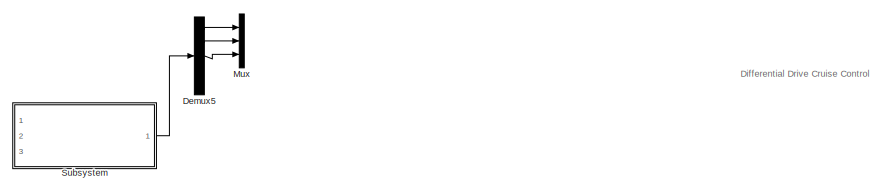
[diagram: root canvas - part 1/3, top center region]
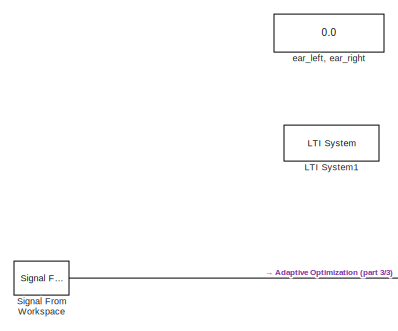
[diagram: root canvas - part 2/3, middle left region]
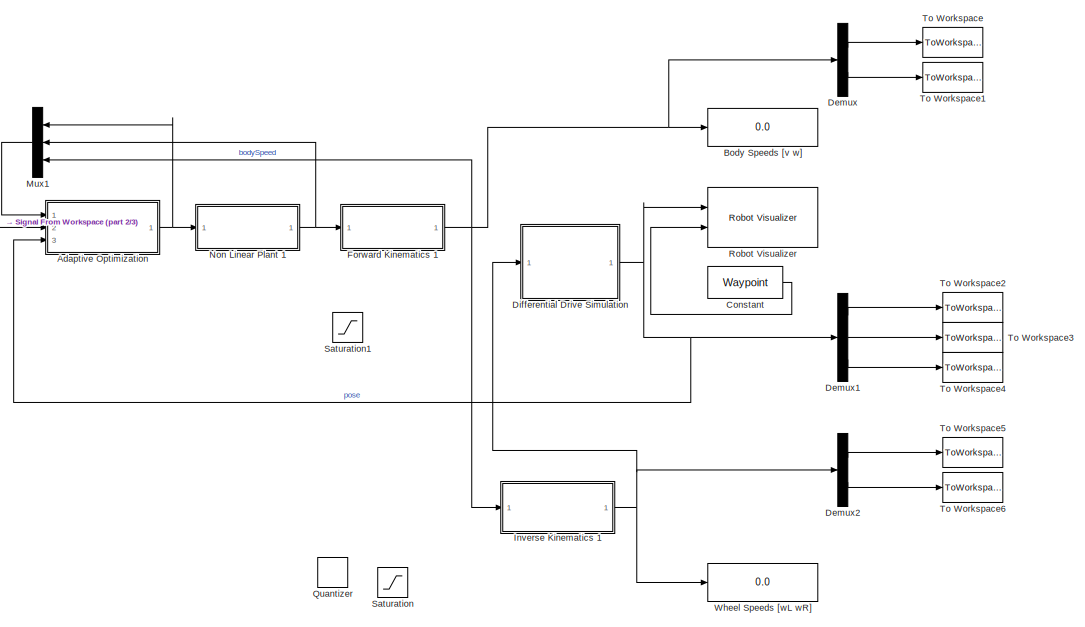
[diagram: root canvas - part 3/3, central region]
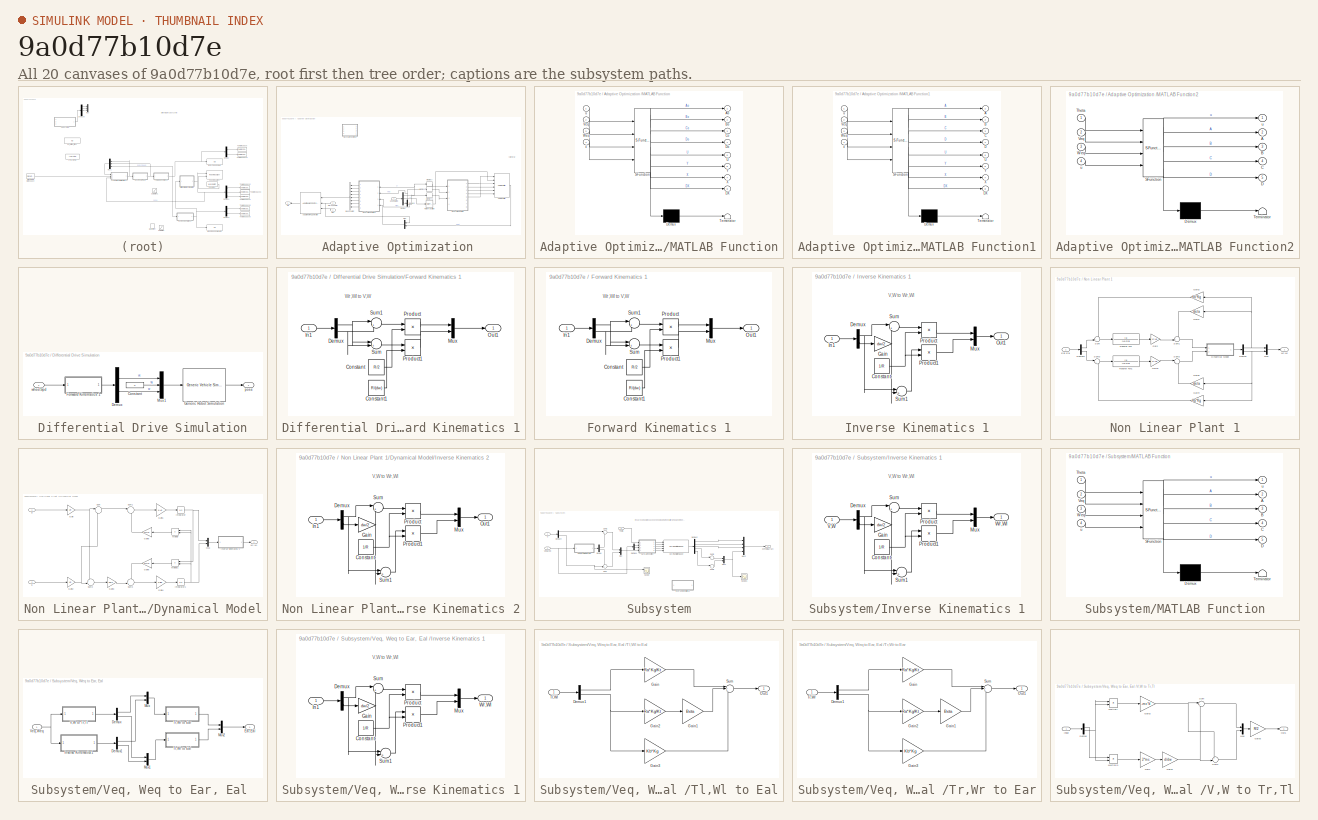
[diagram: thumbnail index - all 20 canvases of the model, root first then tree order]
MODEL slx_9a0d77b10d7e
KIND model
CONFIG AbsTol = auto
CONFIG EnableMultiTasking = off
CONFIG FixedStep = auto
CONFIG MaxStep = auto
CONFIG MinStep = auto
CONFIG RelTol = 1e-3
CONFIG SampleTimeConstraint = Unconstrained
CONFIG Solver = VariableStepAuto
CONFIG SolverName = VariableStepAuto
CONFIG StartTime = 0.0
CONFIG StopTime = inf
BLOCK [SubSystem] Adaptive Optimization 
  Ports = [3, 1]
  RequestExecContextInheritance = off
BLOCK [Reference] Adaptive Optimization /Adaptive MPC Controller  REF=mpclib/Adaptive MPC Controller  (lib defined in mdl_ae329e0e0455)
  Ports = [3, 1]
  SCDEnableBlockLinearizationSpecification = on
  SourceBlock = mpclib/Adaptive MPC Controller
  SourceProductBaseCode = MP
  SourceProductName = Model Predictive Control Toolbox
  SourceType = Adaptive MPC
BLOCK [BusCreator] Adaptive Optimization /Bus Creator
  DisplayOption = bar
  InheritFromInputs = on
  Inputs = 8
  Ports = [8, 1]
BLOCK [Demux] Adaptive Optimization /Demux
  DisplayOption = bar
  Outputs = 3
  Ports = [1, 3]
BLOCK [Demux] Adaptive Optimization /Demux1
  DisplayOption = bar
  Outputs = 2
  Ports = [1, 2]
BLOCK [Reference] Adaptive Optimization /Kalman Filter  REF=ctrlSharedLib/Kalman Filter
  Ports = [6, 1]
  SourceBlock = ctrlSharedLib/Kalman Filter
  SourceProductBaseCode = CT
  SourceProductName = Control System Toolbox
  SourceType = ctrlKalmanFilter
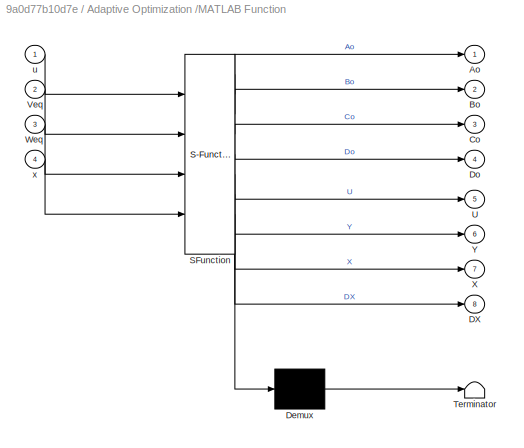
BLOCK [SubSystem] Adaptive Optimization /MATLAB Function
  ErrorFcn = Stateflow.Translate.translate
  PermitHierarchicalResolution = ExplicitOnly
  Ports = [4, 8]
  RequestExecContextInheritance = off
  SFBlockType = MATLAB Function
  SystemSampleTime = sampleTime
  TreatAsAtomicUnit = on
BLOCK [Demux] Adaptive Optimization /MATLAB Function/ Demux 
  Outputs = 1
  Ports = [1, 1]
BLOCK [S-Function] Adaptive Optimization /MATLAB Function/ SFunction 
  EnableBusSupport = on
  FunctionName = sf_sfun
  Parameters = I,Iw,L,R,d,dw,md,sampleTime
  PortCounts = [4 9]
  Ports = [4, 9]
  SFcnIsStateOwnerBlock = off
  SFunctionDeploymentMode = off
  Tag = Stateflow S-Function Position_MPC_Adaptive 3
BLOCK [Terminator] Adaptive Optimization /MATLAB Function/ Terminator 
BLOCK [Outport] Adaptive Optimization /MATLAB Function/Ao
  IconDisplay = Port number
BLOCK [Outport] Adaptive Optimization /MATLAB Function/Bo
  IconDisplay = Port number
  Port = 2
BLOCK [Outport] Adaptive Optimization /MATLAB Function/Co
  IconDisplay = Port number
  Port = 3
BLOCK [Outport] Adaptive Optimization /MATLAB Function/DX
  IconDisplay = Port number
  Port = 8
BLOCK [Outport] Adaptive Optimization /MATLAB Function/Do
  IconDisplay = Port number
  Port = 4
BLOCK [Outport] Adaptive Optimization /MATLAB Function/U
  IconDisplay = Port number
  Port = 5
BLOCK [Inport] Adaptive Optimization /MATLAB Function/Veq
  IconDisplay = Port number
  Port = 2
BLOCK [Inport] Adaptive Optimization /MATLAB Function/Weq
  IconDisplay = Port number
  Port = 3
BLOCK [Outport] Adaptive Optimization /MATLAB Function/X
  IconDisplay = Port number
  Port = 7
BLOCK [Outport] Adaptive Optimization /MATLAB Function/Y
  IconDisplay = Port number
  Port = 6
BLOCK [Inport] Adaptive Optimization /MATLAB Function/u
  IconDisplay = Port number
BLOCK [Inport] Adaptive Optimization /MATLAB Function/x
  IconDisplay = Port number
  Port = 4
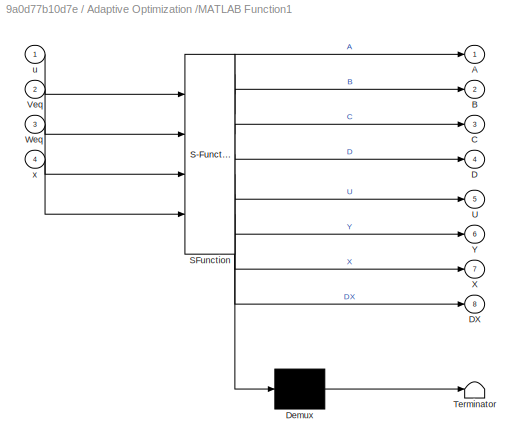
BLOCK [SubSystem] Adaptive Optimization /MATLAB Function1
  ErrorFcn = Stateflow.Translate.translate
  PermitHierarchicalResolution = ExplicitOnly
  Ports = [4, 8]
  RequestExecContextInheritance = off
  SFBlockType = MATLAB Function
  SystemSampleTime = sampleTime
  TreatAsAtomicUnit = on
BLOCK [Demux] Adaptive Optimization /MATLAB Function1/ Demux 
  Outputs = 1
  Ports = [1, 1]
BLOCK [S-Function] Adaptive Optimization /MATLAB Function1/ SFunction 
  EnableBusSupport = on
  FunctionName = sf_sfun
  Parameters = I,Iw,L,R,d,dw,md,sampleTime
  PortCounts = [4 9]
  Ports = [4, 9]
  SFcnIsStateOwnerBlock = off
  SFunctionDeploymentMode = off
  Tag = Stateflow S-Function Position_MPC_Adaptive 4
BLOCK [Terminator] Adaptive Optimization /MATLAB Function1/ Terminator 
BLOCK [Outport] Adaptive Optimization /MATLAB Function1/A
  IconDisplay = Port number
BLOCK [Outport] Adaptive Optimization /MATLAB Function1/B
  IconDisplay = Port number
  Port = 2
BLOCK [Outport] Adaptive Optimization /MATLAB Function1/C
  IconDisplay = Port number
  Port = 3
BLOCK [Outport] Adaptive Optimization /MATLAB Function1/D
  IconDisplay = Port number
  Port = 4
BLOCK [Outport] Adaptive Optimization /MATLAB Function1/DX
  IconDisplay = Port number
  Port = 8
BLOCK [Outport] Adaptive Optimization /MATLAB Function1/U
  IconDisplay = Port number
  Port = 5
BLOCK [Inport] Adaptive Optimization /MATLAB Function1/Veq
  IconDisplay = Port number
  Port = 2
BLOCK [Inport] Adaptive Optimization /MATLAB Function1/Weq
  IconDisplay = Port number
  Port = 3
BLOCK [Outport] Adaptive Optimization /MATLAB Function1/X
  IconDisplay = Port number
  Port = 7
BLOCK [Outport] Adaptive Optimization /MATLAB Function1/Y
  IconDisplay = Port number
  Port = 6
BLOCK [Inport] Adaptive Optimization /MATLAB Function1/u
  IconDisplay = Port number
BLOCK [Inport] Adaptive Optimization /MATLAB Function1/x
  IconDisplay = Port number
  Port = 4
BLOCK [SubSystem] Adaptive Optimization /MATLAB Function2
  ErrorFcn = Stateflow.Translate.translate
  PermitHierarchicalResolution = ExplicitOnly
  Ports = [4, 5]
  RequestExecContextInheritance = off
  SFBlockType = MATLAB Function
  SystemSampleTime = sampleTime*0.1
  TreatAsAtomicUnit = on
BLOCK [Demux] Adaptive Optimization /MATLAB Function2/ Demux 
  Outputs = 1
  Ports = [1, 1]
BLOCK [S-Function] Adaptive Optimization /MATLAB Function2/ SFunction 
  EnableBusSupport = on
  FunctionName = sf_sfun
  Parameters = I,Iw,R,sampleTime
  PortCounts = [4 6]
  Ports = [4, 6]
  SFcnIsStateOwnerBlock = off
  SFunctionDeploymentMode = off
  Tag = Stateflow S-Function Position_MPC_Adaptive 1
BLOCK [Terminator] Adaptive Optimization /MATLAB Function2/ Terminator 
BLOCK [Outport] Adaptive Optimization /MATLAB Function2/A
  IconDisplay = Port number
  Port = 2
BLOCK [Outport] Adaptive Optimization /MATLAB Function2/B
  IconDisplay = Port number
  Port = 3
BLOCK [Outport] Adaptive Optimization /MATLAB Function2/C
  IconDisplay = Port number
  Port = 4
BLOCK [Outport] Adaptive Optimization /MATLAB Function2/D
  IconDisplay = Port number
  Port = 5
BLOCK [Inport] Adaptive Optimization /MATLAB Function2/Theta
  IconDisplay = Port number
BLOCK [Inport] Adaptive Optimization /MATLAB Function2/Veq
  IconDisplay = Port number
  Port = 2
BLOCK [Inport] Adaptive Optimization /MATLAB Function2/Weq
  IconDisplay = Port number
  Port = 3
BLOCK [Outport] Adaptive Optimization /MATLAB Function2/u
  IconDisplay = Port number
BLOCK [Inport] Adaptive Optimization /MATLAB Function2/u 
  IconDisplay = Port number
  Port = 4
BLOCK [Memory] Adaptive Optimization /Memory
BLOCK [Memory] Adaptive Optimization /Memory1
BLOCK [Memory] Adaptive Optimization /Memory2
BLOCK [Inport] Adaptive Optimization /Mo(X,Y,Theta)
  IconDisplay = Port number
  Port = 3
BLOCK [Mux] Adaptive Optimization /Mux
  DisplayOption = bar
  Inputs = 2
  Ports = [2, 1]
BLOCK [Outport] Adaptive Optimization /Mv
  IconDisplay = Port number
BLOCK [RateTransition] Adaptive Optimization /Rate Transition
  OutPortSampleTime = sampleTime
BLOCK [Inport] Adaptive Optimization /Ref
  IconDisplay = Port number
  Port = 2
BLOCK [Inport] Adaptive Optimization /U,Y,Veq,Weq
  IconDisplay = Port number
BLOCK [Display] Body Speeds [v w]
  Decimation = 1
  Ports = [1]
BLOCK [Constant] Constant
  SampleTime = sampleTime
  Value = Waypoint
BLOCK [Demux] Demux
  DisplayOption = bar
  Outputs = 2
  Ports = [1, 2]
BLOCK [Demux] Demux1
  DisplayOption = bar
  Outputs = 3
  Ports = [1, 3]
BLOCK [Demux] Demux2
  DisplayOption = bar
  Outputs = 2
  Ports = [1, 2]
BLOCK [Demux] Demux5
  DisplayOption = bar
  Outputs = 5
  Ports = [1, 5]
BLOCK [SubSystem] Differential Drive Simulation
  AncestorBlock = mobileRoboticsLib/Kinematic Models/Differential Drive/Differential Drive Simulation
  OverrideUsingVariant = mode==2
  Ports = [1, 1]
  RequestExecContextInheritance = off
BLOCK [Constant] Differential Drive Simulation/Constant
  Value = 0
BLOCK [Demux] Differential Drive Simulation/Demux
  DisplayOption = bar
  Outputs = 2
  Ports = [1, 2]
BLOCK [SubSystem] Differential Drive Simulation/Forward Kinematics 1
  Ports = [1, 1]
  RequestExecContextInheritance = off
BLOCK [Constant] Differential Drive Simulation/Forward Kinematics 1/Constant
  Value = R/2
BLOCK [Constant] Differential Drive Simulation/Forward Kinematics 1/Constant1
  Value = R/(dw)
BLOCK [Demux] Differential Drive Simulation/Forward Kinematics 1/Demux
  DisplayOption = bar
  Outputs = 2
  Ports = [1, 2]
BLOCK [Inport] Differential Drive Simulation/Forward Kinematics 1/In1
  IconDisplay = Port number
BLOCK [Mux] Differential Drive Simulation/Forward Kinematics 1/Mux
  DisplayOption = bar
  Inputs = 2
  Ports = [2, 1]
BLOCK [Outport] Differential Drive Simulation/Forward Kinematics 1/Out1
  IconDisplay = Port number
BLOCK [Product] Differential Drive Simulation/Forward Kinematics 1/Product
  InputSameDT = off
  OutDataTypeStr = Inherit: Inherit via internal rule
  Ports = [2, 1]
  RndMeth = Floor
  SaturateOnIntegerOverflow = off
BLOCK [Product] Differential Drive Simulation/Forward Kinematics 1/Product1
  InputSameDT = off
  OutDataTypeStr = Inherit: Inherit via internal rule
  Ports = [2, 1]
  RndMeth = Floor
  SaturateOnIntegerOverflow = off
BLOCK [Sum] Differential Drive Simulation/Forward Kinematics 1/Sum
  IconShape = round
  InputSameDT = off
  Inputs = |+-
  OutDataTypeStr = Inherit: Inherit via internal rule
  Ports = [2, 1]
  SaturateOnIntegerOverflow = off
BLOCK [Sum] Differential Drive Simulation/Forward Kinematics 1/Sum1
  IconShape = round
  InputSameDT = off
  Inputs = |++
  OutDataTypeStr = Inherit: Inherit via internal rule
  Ports = [2, 1]
  SaturateOnIntegerOverflow = off
BLOCK [Reference] Differential Drive Simulation/Generic Robot Simulation  REF=mobileRoboticsLib/Utilities/Generic Vehicle Simulation
  Ports = [1, 1]
  SourceBlock = mobileRoboticsLib/Utilities/Generic Vehicle Simulation
  SourceProductName = Mobile Robotics Simulation Toolbox
  SourceType = Generic Vehicle Simulation
BLOCK [Mux] Differential Drive Simulation/Mux1
  DisplayOption = bar
  Inputs = 3
  Ports = [3, 1]
BLOCK [Outport] Differential Drive Simulation/pose
  IconDisplay = Port number
BLOCK [Inport] Differential Drive Simulation/wheelSpd
  IconDisplay = Port number
BLOCK [SubSystem] Forward Kinematics 1
  Ports = [1, 1]
  RequestExecContextInheritance = off
BLOCK [Constant] Forward Kinematics 1/Constant
  Value = R/2
BLOCK [Constant] Forward Kinematics 1/Constant1
  Value = R/(dw)
BLOCK [Demux] Forward Kinematics 1/Demux
  DisplayOption = bar
  Outputs = 2
  Ports = [1, 2]
BLOCK [Inport] Forward Kinematics 1/In1
  IconDisplay = Port number
BLOCK [Mux] Forward Kinematics 1/Mux
  DisplayOption = bar
  Inputs = 2
  Ports = [2, 1]
BLOCK [Outport] Forward Kinematics 1/Out1
  IconDisplay = Port number
BLOCK [Product] Forward Kinematics 1/Product
  InputSameDT = off
  OutDataTypeStr = Inherit: Inherit via internal rule
  Ports = [2, 1]
  RndMeth = Floor
  SaturateOnIntegerOverflow = off
BLOCK [Product] Forward Kinematics 1/Product1
  InputSameDT = off
  OutDataTypeStr = Inherit: Inherit via internal rule
  Ports = [2, 1]
  RndMeth = Floor
  SaturateOnIntegerOverflow = off
BLOCK [Sum] Forward Kinematics 1/Sum
  IconShape = round
  InputSameDT = off
  Inputs = |+-
  OutDataTypeStr = Inherit: Inherit via internal rule
  Ports = [2, 1]
  SaturateOnIntegerOverflow = off
BLOCK [Sum] Forward Kinematics 1/Sum1
  IconShape = round
  InputSameDT = off
  Inputs = |++
  OutDataTypeStr = Inherit: Inherit via internal rule
  Ports = [2, 1]
  SaturateOnIntegerOverflow = off
BLOCK [SubSystem] Inverse Kinematics 1
  Ports = [1, 1]
  RequestExecContextInheritance = off
BLOCK [Constant] Inverse Kinematics 1/Constant
  Value = 1/R
BLOCK [Demux] Inverse Kinematics 1/Demux
  DisplayOption = bar
  Outputs = 2
  Ports = [1, 2]
BLOCK [Gain] Inverse Kinematics 1/Gain
  Gain = dw/2
  OutDataTypeStr = Inherit: Inherit via internal rule
  ParamDataTypeStr = Inherit: Inherit via internal rule
  SaturateOnIntegerOverflow = off
BLOCK [Inport] Inverse Kinematics 1/In1
  IconDisplay = Port number
BLOCK [Mux] Inverse Kinematics 1/Mux
  DisplayOption = bar
  Inputs = 2
  Ports = [2, 1]
BLOCK [Outport] Inverse Kinematics 1/Out1
  IconDisplay = Port number
BLOCK [Product] Inverse Kinematics 1/Product
  InputSameDT = off
  OutDataTypeStr = Inherit: Inherit via internal rule
  Ports = [2, 1]
  RndMeth = Floor
  SaturateOnIntegerOverflow = off
BLOCK [Product] Inverse Kinematics 1/Product1
  InputSameDT = off
  OutDataTypeStr = Inherit: Inherit via internal rule
  Ports = [2, 1]
  RndMeth = Floor
  SaturateOnIntegerOverflow = off
BLOCK [Sum] Inverse Kinematics 1/Sum
  IconShape = round
  InputSameDT = off
  Inputs = |++
  OutDataTypeStr = Inherit: Inherit via internal rule
  Ports = [2, 1]
  SaturateOnIntegerOverflow = off
BLOCK [Sum] Inverse Kinematics 1/Sum1
  IconShape = round
  InputSameDT = off
  Inputs = |+-
  OutDataTypeStr = Inherit: Inherit via internal rule
  Ports = [2, 1]
  SaturateOnIntegerOverflow = off
BLOCK [Reference] LTI System1  REF=cstblocks/LTI System
  Ports = [1, 1]
  SourceBlock = cstblocks/LTI System
  SourceProductBaseCode = CT
  SourceProductName = Control System Toolbox
  SourceType = LTI Block
BLOCK [Mux] Mux
  DisplayOption = bar
  Inputs = 3
  Ports = [3, 1]
BLOCK [Mux] Mux1
  DisplayOption = bar
  Inputs = 3
  Ports = [3, 1]
BLOCK [SubSystem] Non Linear Plant 1
  Ports = [1, 1]
  RequestExecContextInheritance = off
BLOCK [Demux] Non Linear Plant 1/Demux
  DisplayOption = bar
  Outputs = 2
  Ports = [1, 2]
BLOCK [Demux] Non Linear Plant 1/Demux1
  DisplayOption = bar
  Outputs = 2
  Ports = [1, 2]
BLOCK [SubSystem] Non Linear Plant 1/Dynamical Model
  Ports = [2, 1]
  RequestExecContextInheritance = off
BLOCK [Gain] Non Linear Plant 1/Dynamical Model/Gain
  Gain = 1/R
  OutDataTypeStr = Inherit: Inherit via internal rule
  ParamDataTypeStr = Inherit: Inherit via internal rule
  SaturateOnIntegerOverflow = off
BLOCK [Gain] Non Linear Plant 1/Dynamical Model/Gain1
  Gain = 1/Ad
  OutDataTypeStr = Inherit: Inherit via internal rule
  ParamDataTypeStr = Inherit: Inherit via internal rule
  SaturateOnIntegerOverflow = off
BLOCK [Gain] Non Linear Plant 1/Dynamical Model/Gain2
  Gain = 1/R
  OutDataTypeStr = Inherit: Inherit via internal rule
  ParamDataTypeStr = Inherit: Inherit via internal rule
  SaturateOnIntegerOverflow = off
BLOCK [Gain] Non Linear Plant 1/Dynamical Model/Gain3
  Gain = dw/2
  OutDataTypeStr = Inherit: Inherit via internal rule
  ParamDataTypeStr = Inherit: Inherit via internal rule
  SaturateOnIntegerOverflow = off
BLOCK [Gain] Non Linear Plant 1/Dynamical Model/Gain4
  Gain = 1/Bd
  OutDataTypeStr = Inherit: Inherit via internal rule
  ParamDataTypeStr = Inherit: Inherit via internal rule
  SaturateOnIntegerOverflow = off
BLOCK [Gain] Non Linear Plant 1/Dynamical Model/Gain5
  Gain = mc*d
  OutDataTypeStr = Inherit: Inherit via internal rule
  ParamDataTypeStr = Inherit: Inherit via internal rule
  SaturateOnIntegerOverflow = off
BLOCK [Gain] Non Linear Plant 1/Dynamical Model/Gain6
  Gain = mc*d
  OutDataTypeStr = Inherit: Inherit via internal rule
  ParamDataTypeStr = Inherit: Inherit via internal rule
  SaturateOnIntegerOverflow = off
BLOCK [Integrator] Non Linear Plant 1/Dynamical Model/Integrator
  Ports = [1, 1]
BLOCK [Integrator] Non Linear Plant 1/Dynamical Model/Integrator1
  Ports = [1, 1]
BLOCK [SubSystem] Non Linear Plant 1/Dynamical Model/Inverse Kinematics 2
  Ports = [1, 1]
  RequestExecContextInheritance = off
BLOCK [Constant] Non Linear Plant 1/Dynamical Model/Inverse Kinematics 2/Constant
  Value = 1/R
BLOCK [Demux] Non Linear Plant 1/Dynamical Model/Inverse Kinematics 2/Demux
  DisplayOption = bar
  Outputs = 2
  Ports = [1, 2]
BLOCK [Gain] Non Linear Plant 1/Dynamical Model/Inverse Kinematics 2/Gain
  Gain = dw/2
  OutDataTypeStr = Inherit: Inherit via internal rule
  ParamDataTypeStr = Inherit: Inherit via internal rule
  SaturateOnIntegerOverflow = off
BLOCK [Inport] Non Linear Plant 1/Dynamical Model/Inverse Kinematics 2/In1
  IconDisplay = Port number
BLOCK [Mux] Non Linear Plant 1/Dynamical Model/Inverse Kinematics 2/Mux
  DisplayOption = bar
  Inputs = 2
  Ports = [2, 1]
BLOCK [Outport] Non Linear Plant 1/Dynamical Model/Inverse Kinematics 2/Out1
  IconDisplay = Port number
BLOCK [Product] Non Linear Plant 1/Dynamical Model/Inverse Kinematics 2/Product
  InputSameDT = off
  OutDataTypeStr = Inherit: Inherit via internal rule
  Ports = [2, 1]
  RndMeth = Floor
  SaturateOnIntegerOverflow = off
BLOCK [Product] Non Linear Plant 1/Dynamical Model/Inverse Kinematics 2/Product1
  InputSameDT = off
  OutDataTypeStr = Inherit: Inherit via internal rule
  Ports = [2, 1]
  RndMeth = Floor
  SaturateOnIntegerOverflow = off
BLOCK [Sum] Non Linear Plant 1/Dynamical Model/Inverse Kinematics 2/Sum
  IconShape = round
  InputSameDT = off
  Inputs = |++
  OutDataTypeStr = Inherit: Inherit via internal rule
  Ports = [2, 1]
  SaturateOnIntegerOverflow = off
BLOCK [Sum] Non Linear Plant 1/Dynamical Model/Inverse Kinematics 2/Sum1
  IconShape = round
  InputSameDT = off
  Inputs = |+-
  OutDataTypeStr = Inherit: Inherit via internal rule
  Ports = [2, 1]
  SaturateOnIntegerOverflow = off
BLOCK [Product] Non Linear Plant 1/Dynamical Model/Multiply
  InputSameDT = off
  OutDataTypeStr = Inherit: Inherit via internal rule
  Ports = [2, 1]
  RndMeth = Floor
  SaturateOnIntegerOverflow = off
BLOCK [Product] Non Linear Plant 1/Dynamical Model/Multiply1
  InputSameDT = off
  OutDataTypeStr = Inherit: Inherit via internal rule
  Ports = [2, 1]
  RndMeth = Floor
  SaturateOnIntegerOverflow = off
BLOCK [Mux] Non Linear Plant 1/Dynamical Model/Mux
  DisplayOption = bar
  Inputs = 2
  Ports = [2, 1]
BLOCK [Sum] Non Linear Plant 1/Dynamical Model/Sum
  IconShape = round
  InputSameDT = off
  Inputs = |++
  OutDataTypeStr = Inherit: Inherit via internal rule
  Ports = [2, 1]
  SaturateOnIntegerOverflow = off
BLOCK [Sum] Non Linear Plant 1/Dynamical Model/Sum1
  IconShape = round
  InputSameDT = off
  Inputs = |++
  OutDataTypeStr = Inherit: Inherit via internal rule
  Ports = [2, 1]
  SaturateOnIntegerOverflow = off
BLOCK [Sum] Non Linear Plant 1/Dynamical Model/Sum2
  IconShape = round
  InputSameDT = off
  Inputs = +-|
  OutDataTypeStr = Inherit: Inherit via internal rule
  Ports = [2, 1]
  SaturateOnIntegerOverflow = off
BLOCK [Sum] Non Linear Plant 1/Dynamical Model/Sum3
  IconShape = round
  InputSameDT = off
  Inputs = -+|
  OutDataTypeStr = Inherit: Inherit via internal rule
  Ports = [2, 1]
  SaturateOnIntegerOverflow = off
BLOCK [Inport] Non Linear Plant 1/Dynamical Model/Tl
  IconDisplay = Port number
  Port = 2
BLOCK [Inport] Non Linear Plant 1/Dynamical Model/Tr
  IconDisplay = Port number and signal name
BLOCK [Outport] Non Linear Plant 1/Dynamical Model/Wr,Wl
  IconDisplay = Port number
BLOCK [Inport] Non Linear Plant 1/Ear,Eal 
  IconDisplay = Port number
BLOCK [Gain] Non Linear Plant 1/Gain
  Gain = Kt/Kg
  OutDataTypeStr = Inherit: Inherit via internal rule
  ParamDataTypeStr = Inherit: Inherit via internal rule
  SaturateOnIntegerOverflow = off
BLOCK [Gain] Non Linear Plant 1/Gain1
  Gain = Beta
  OutDataTypeStr = Inherit: Inherit via internal rule
  ParamDataTypeStr = Inherit: Inherit via internal rule
  SaturateOnIntegerOverflow = off
BLOCK [Gain] Non Linear Plant 1/Gain2
  Gain = Kb*Kg
  OutDataTypeStr = Inherit: Inherit via internal rule
  ParamDataTypeStr = Inherit: Inherit via internal rule
  SaturateOnIntegerOverflow = off
BLOCK [Gain] Non Linear Plant 1/Gain3
  Gain = Kt/Kg
  OutDataTypeStr = Inherit: Inherit via internal rule
  ParamDataTypeStr = Inherit: Inherit via internal rule
  SaturateOnIntegerOverflow = off
BLOCK [Gain] Non Linear Plant 1/Gain4
  Gain = Kb*Kg
  OutDataTypeStr = Inherit: Inherit via internal rule
  ParamDataTypeStr = Inherit: Inherit via internal rule
  SaturateOnIntegerOverflow = off
BLOCK [Gain] Non Linear Plant 1/Gain5
  Gain = Beta
  OutDataTypeStr = Inherit: Inherit via internal rule
  ParamDataTypeStr = Inherit: Inherit via internal rule
  SaturateOnIntegerOverflow = off
BLOCK [Mux] Non Linear Plant 1/Mux
  DisplayOption = bar
  Inputs = 2
  Ports = [2, 1]
BLOCK [Sum] Non Linear Plant 1/Sum
  IconShape = round
  InputSameDT = off
  Inputs = -+|
  OutDataTypeStr = Inherit: Inherit via internal rule
  Ports = [2, 1]
  SaturateOnIntegerOverflow = off
BLOCK [Sum] Non Linear Plant 1/Sum1
  IconShape = round
  InputSameDT = off
  Inputs = -+|
  OutDataTypeStr = Inherit: Inherit via internal rule
  Ports = [2, 1]
  SaturateOnIntegerOverflow = off
BLOCK [Sum] Non Linear Plant 1/Sum2
  IconShape = round
  InputSameDT = off
  Inputs = |+-
  OutDataTypeStr = Inherit: Inherit via internal rule
  Ports = [2, 1]
  SaturateOnIntegerOverflow = off
BLOCK [Sum] Non Linear Plant 1/Sum3
  IconShape = round
  InputSameDT = off
  Inputs = |+-
  OutDataTypeStr = Inherit: Inherit via internal rule
  Ports = [2, 1]
  SaturateOnIntegerOverflow = off
BLOCK [TransferFcn] Non Linear Plant 1/Transfer Fcn
  Denominator = [La Ra]
BLOCK [TransferFcn] Non Linear Plant 1/Transfer Fcn1
  Denominator = [La Ra]
BLOCK [Outport] Non Linear Plant 1/Wr,Wl
  IconDisplay = Port number
BLOCK [Quantizer] Quantizer
BLOCK [Reference] Robot Visualizer  REF=mobileRoboticsLib/Environments/Robot Visualizer
  Ports = [2]
  Priority = 99
  SourceBlock = mobileRoboticsLib/Environments/Robot Visualizer
  SourceProductName = Mobile Robotics Simulation Library
  SourceType = Visualizer2D
BLOCK [Saturate] Saturation
  InputPortMap = u0
  Ports = [1, 1]
BLOCK [Saturate] Saturation1
  InputPortMap = u0
  LowerLimit = 0
  Ports = [1, 1]
  UpperLimit = 12
BLOCK [Reference] Signal From Workspace  REF=dspsrcs4/Signal From
Workspace
  Ports = [0, 1]
  SourceBlock = dspsrcs4/Signal From\nWorkspace
  SourceProductBaseCode = DS
  SourceProductName = DSP System Toolbox
  SourceType = Signal From Workspace
BLOCK [SubSystem] Subsystem
  Ports = [3, 1]
  RequestExecContextInheritance = off
BLOCK [Demux] Subsystem/Demux
  DisplayOption = bar
  Outputs = 2
  Ports = [1, 2]
BLOCK [Demux] Subsystem/Demux1
  DisplayOption = bar
  Outputs = 2
  Ports = [1, 2]
BLOCK [Demux] Subsystem/Demux2
  DisplayOption = bar
  Outputs = 5
  Ports = [1, 5]
BLOCK [Demux] Subsystem/Demux4
  DisplayOption = bar
  Outputs = 2
  Ports = [1, 2]
BLOCK [SubSystem] Subsystem/Inverse Kinematics 1
  Ports = [1, 1]
  RequestExecContextInheritance = off
BLOCK [Constant] Subsystem/Inverse Kinematics 1/Constant
  Value = 1/R
BLOCK [Demux] Subsystem/Inverse Kinematics 1/Demux
  DisplayOption = bar
  Outputs = 2
  Ports = [1, 2]
BLOCK [Gain] Subsystem/Inverse Kinematics 1/Gain
  Gain = dw/2
  OutDataTypeStr = Inherit: Inherit via internal rule
  ParamDataTypeStr = Inherit: Inherit via internal rule
  SaturateOnIntegerOverflow = off
BLOCK [Mux] Subsystem/Inverse Kinematics 1/Mux
  DisplayOption = bar
  Inputs = 2
  Ports = [2, 1]
BLOCK [Product] Subsystem/Inverse Kinematics 1/Product
  InputSameDT = off
  OutDataTypeStr = Inherit: Inherit via internal rule
  Ports = [2, 1]
  RndMeth = Floor
  SaturateOnIntegerOverflow = off
BLOCK [Product] Subsystem/Inverse Kinematics 1/Product1
  InputSameDT = off
  OutDataTypeStr = Inherit: Inherit via internal rule
  Ports = [2, 1]
  RndMeth = Floor
  SaturateOnIntegerOverflow = off
BLOCK [Sum] Subsystem/Inverse Kinematics 1/Sum
  IconShape = round
  InputSameDT = off
  Inputs = |++
  OutDataTypeStr = Inherit: Inherit via internal rule
  Ports = [2, 1]
  SaturateOnIntegerOverflow = off
BLOCK [Sum] Subsystem/Inverse Kinematics 1/Sum1
  IconShape = round
  InputSameDT = off
  Inputs = |+-
  OutDataTypeStr = Inherit: Inherit via internal rule
  Ports = [2, 1]
  SaturateOnIntegerOverflow = off
BLOCK [Inport] Subsystem/Inverse Kinematics 1/V,W
  IconDisplay = Port number
BLOCK [Outport] Subsystem/Inverse Kinematics 1/Wr,Wl
  IconDisplay = Port number
BLOCK [SubSystem] Subsystem/MATLAB Function
  ErrorFcn = Stateflow.Translate.translate
  PermitHierarchicalResolution = ExplicitOnly
  Ports = [4, 5]
  RequestExecContextInheritance = off
  SFBlockType = MATLAB Function
  SystemSampleTime = sampleTime*0.1
  TreatAsAtomicUnit = on
BLOCK [Demux] Subsystem/MATLAB Function/ Demux 
  Outputs = 1
  Ports = [1, 1]
BLOCK [S-Function] Subsystem/MATLAB Function/ SFunction 
  EnableBusSupport = on
  FunctionName = sf_sfun
  Parameters = I,Iw,R,sampleTime
  PortCounts = [4 6]
  Ports = [4, 6]
  SFcnIsStateOwnerBlock = off
  SFunctionDeploymentMode = off
  Tag = Stateflow S-Function Position_MPC_Adaptive 2
BLOCK [Terminator] Subsystem/MATLAB Function/ Terminator 
BLOCK [Outport] Subsystem/MATLAB Function/A
  IconDisplay = Port number
  Port = 2
BLOCK [Outport] Subsystem/MATLAB Function/B
  IconDisplay = Port number
  Port = 3
BLOCK [Outport] Subsystem/MATLAB Function/C
  IconDisplay = Port number
  Port = 4
BLOCK [Outport] Subsystem/MATLAB Function/D
  IconDisplay = Port number
  Port = 5
BLOCK [Inport] Subsystem/MATLAB Function/Theta
  IconDisplay = Port number
BLOCK [Inport] Subsystem/MATLAB Function/Veq
  IconDisplay = Port number
  Port = 2
BLOCK [Inport] Subsystem/MATLAB Function/Weq
  IconDisplay = Port number
  Port = 3
BLOCK [Outport] Subsystem/MATLAB Function/u
  IconDisplay = Port number
BLOCK [Inport] Subsystem/MATLAB Function/u 
  IconDisplay = Port number
  Port = 4
BLOCK [Mux] Subsystem/Mux
  DisplayOption = bar
  Inputs = 2
  Ports = [2, 1]
BLOCK [Mux] Subsystem/Mux1
  DisplayOption = bar
  Inputs = 2
  Ports = [2, 1]
BLOCK [Mux] Subsystem/Mux2
  DisplayOption = bar
  Ports = [4, 1]
BLOCK [Scope] Subsystem/Scope
  Floating = off
  NumInputPorts = 2
  Ports = [2]
  ScopeSpecificationString = Simulink.scopes.TimeScopeBlockCfg('CurrentConfiguration', extmgr.ConfigurationSet(extmgr.Configuration('Core','General UI',true),extmgr.Configuration('Core','Source UI',true),extmgr.Configuration('Sources','WiredSimulink',true,'DataLoggingVariableName','ScopeData1'),extmgr.Configuration('Visuals','Time Domain',true,'SerializedDisplays',{struct('MinYLimReal','-8958.46312','MaxYLimReal','8931.89273'...<+1453ch>
BLOCK [Scope] Subsystem/Scope1
  Floating = off
  NumInputPorts = 1
  Ports = [1]
  ScopeSpecificationString = Simulink.scopes.TimeScopeBlockCfg('CurrentConfiguration', extmgr.ConfigurationSet(extmgr.Configuration('Core','General UI',true),extmgr.Configuration('Core','Source UI',true),extmgr.Configuration('Sources','WiredSimulink',true,'DataLoggingVariableName','ScopeData2','DataLoggingSaveFormat','Array','DataLoggingLimitDataPoints',true,'DataLoggingDecimation','1'),extmgr.Configuration('Visuals','Time Do...<+1651ch>
BLOCK [Sum] Subsystem/Sum
  IconShape = round
  InputSameDT = off
  Inputs = -+|
  OutDataTypeStr = Inherit: Inherit via internal rule
  Ports = [2, 1]
  SaturateOnIntegerOverflow = off
BLOCK [Sum] Subsystem/Sum1
  IconShape = round
  InputSameDT = off
  Inputs = |+-
  OutDataTypeStr = Inherit: Inherit via internal rule
  Ports = [2, 1]
  SaturateOnIntegerOverflow = off
BLOCK [Sum] Subsystem/Sum2
  IconShape = round
  InputSameDT = off
  Inputs = |++
  OutDataTypeStr = Inherit: Inherit via internal rule
  Ports = [2, 1]
  SaturateOnIntegerOverflow = off
BLOCK [Sum] Subsystem/Sum3
  IconShape = round
  InputSameDT = off
  Inputs = |++
  OutDataTypeStr = Inherit: Inherit via internal rule
  Ports = [2, 1]
  SaturateOnIntegerOverflow = off
BLOCK [Inport] Subsystem/Theta 
  IconDisplay = Port number
  Port = 3
BLOCK [Reference] Subsystem/Varying State Space  REF=cstblocks/Linear Parameter Varying/Varying State Space
  Ports = [5, 1]
  SourceBlock = cstblocks/Linear Parameter Varying/Varying State Space
  SourceProductBaseCode = CT
  SourceProductName = Control System Toolbox
  SourceType = Varying State Space
BLOCK [SubSystem] Subsystem/Veq, Weq to Ear, Eal 
  Ports = [1, 1]
  RequestExecContextInheritance = off
BLOCK [Demux] Subsystem/Veq, Weq to Ear, Eal /Demux
  DisplayOption = bar
  Outputs = 2
  Ports = [1, 2]
BLOCK [Demux] Subsystem/Veq, Weq to Ear, Eal /Demux1
  DisplayOption = bar
  Outputs = 2
  Ports = [1, 2]
BLOCK [Outport] Subsystem/Veq, Weq to Ear, Eal /Ear,Eal
  IconDisplay = Port number
BLOCK [SubSystem] Subsystem/Veq, Weq to Ear, Eal /Inverse Kinematics 1
  Ports = [1, 1]
  RequestExecContextInheritance = off
BLOCK [Constant] Subsystem/Veq, Weq to Ear, Eal /Inverse Kinematics 1/Constant
  Value = 1/R
BLOCK [Demux] Subsystem/Veq, Weq to Ear, Eal /Inverse Kinematics 1/Demux
  DisplayOption = bar
  Outputs = 2
  Ports = [1, 2]
BLOCK [Gain] Subsystem/Veq, Weq to Ear, Eal /Inverse Kinematics 1/Gain
  Gain = dw/2
  OutDataTypeStr = Inherit: Inherit via internal rule
  ParamDataTypeStr = Inherit: Inherit via internal rule
  SaturateOnIntegerOverflow = off
BLOCK [Inport] Subsystem/Veq, Weq to Ear, Eal /Inverse Kinematics 1/In1
  IconDisplay = Port number
BLOCK [Mux] Subsystem/Veq, Weq to Ear, Eal /Inverse Kinematics 1/Mux
  DisplayOption = bar
  Inputs = 2
  Ports = [2, 1]
BLOCK [Product] Subsystem/Veq, Weq to Ear, Eal /Inverse Kinematics 1/Product
  InputSameDT = off
  OutDataTypeStr = Inherit: Inherit via internal rule
  Ports = [2, 1]
  RndMeth = Floor
  SaturateOnIntegerOverflow = off
BLOCK [Product] Subsystem/Veq, Weq to Ear, Eal /Inverse Kinematics 1/Product1
  InputSameDT = off
  OutDataTypeStr = Inherit: Inherit via internal rule
  Ports = [2, 1]
  RndMeth = Floor
  SaturateOnIntegerOverflow = off
BLOCK [Sum] Subsystem/Veq, Weq to Ear, Eal /Inverse Kinematics 1/Sum
  IconShape = round
  InputSameDT = off
  Inputs = |++
  OutDataTypeStr = Inherit: Inherit via internal rule
  Ports = [2, 1]
  SaturateOnIntegerOverflow = off
BLOCK [Sum] Subsystem/Veq, Weq to Ear, Eal /Inverse Kinematics 1/Sum1
  IconShape = round
  InputSameDT = off
  Inputs = |+-
  OutDataTypeStr = Inherit: Inherit via internal rule
  Ports = [2, 1]
  SaturateOnIntegerOverflow = off
BLOCK [Outport] Subsystem/Veq, Weq to Ear, Eal /Inverse Kinematics 1/Wr,Wl
  IconDisplay = Port number
BLOCK [Mux] Subsystem/Veq, Weq to Ear, Eal /Mux
  DisplayOption = bar
  Inputs = 2
  Ports = [2, 1]
BLOCK [Mux] Subsystem/Veq, Weq to Ear, Eal /Mux1
  DisplayOption = bar
  Inputs = 2
  Ports = [2, 1]
BLOCK [Mux] Subsystem/Veq, Weq to Ear, Eal /Mux2
  DisplayOption = bar
  Inputs = 2
  Ports = [2, 1]
BLOCK [SubSystem] Subsystem/Veq, Weq to Ear, Eal /Tl,Wl to Eal
  Ports = [1, 1]
  RequestExecContextInheritance = off
BLOCK [Demux] Subsystem/Veq, Weq to Ear, Eal /Tl,Wl to Eal/Demux1
  DisplayOption = bar
  Outputs = 2
  Ports = [1, 2]
BLOCK [Gain] Subsystem/Veq, Weq to Ear, Eal /Tl,Wl to Eal/Gain
  Gain = Ra*Kg/Kt
  OutDataTypeStr = Inherit: Inherit via internal rule
  ParamDataTypeStr = Inherit: Inherit via internal rule
  SaturateOnIntegerOverflow = off
BLOCK [Gain] Subsystem/Veq, Weq to Ear, Eal /Tl,Wl to Eal/Gain1
  Gain = Beta
  OutDataTypeStr = Inherit: Inherit via internal rule
  ParamDataTypeStr = Inherit: Inherit via internal rule
  SaturateOnIntegerOverflow = off
BLOCK [Gain] Subsystem/Veq, Weq to Ear, Eal /Tl,Wl to Eal/Gain2
  Gain = Ra*Kg/Kt
  OutDataTypeStr = Inherit: Inherit via internal rule
  ParamDataTypeStr = Inherit: Inherit via internal rule
  SaturateOnIntegerOverflow = off
BLOCK [Gain] Subsystem/Veq, Weq to Ear, Eal /Tl,Wl to Eal/Gain3
  Gain = Kb*Kg
  OutDataTypeStr = Inherit: Inherit via internal rule
  ParamDataTypeStr = Inherit: Inherit via internal rule
  SaturateOnIntegerOverflow = off
BLOCK [Outport] Subsystem/Veq, Weq to Ear, Eal /Tl,Wl to Eal/Out1
  IconDisplay = Port number
BLOCK [Sum] Subsystem/Veq, Weq to Ear, Eal /Tl,Wl to Eal/Sum
  IconShape = round
  InputSameDT = off
  Inputs = |+++
  OutDataTypeStr = Inherit: Inherit via internal rule
  Ports = [3, 1]
  SaturateOnIntegerOverflow = off
BLOCK [Inport] Subsystem/Veq, Weq to Ear, Eal /Tl,Wl to Eal/Tl,Wl
  IconDisplay = Port number
BLOCK [SubSystem] Subsystem/Veq, Weq to Ear, Eal /Tr,Wr to Ear
  Ports = [1, 1]
  RequestExecContextInheritance = off
BLOCK [Demux] Subsystem/Veq, Weq to Ear, Eal /Tr,Wr to Ear/Demux1
  DisplayOption = bar
  Outputs = 2
  Ports = [1, 2]
BLOCK [Gain] Subsystem/Veq, Weq to Ear, Eal /Tr,Wr to Ear/Gain
  Gain = Ra*Kg/Kt
  OutDataTypeStr = Inherit: Inherit via internal rule
  ParamDataTypeStr = Inherit: Inherit via internal rule
  SaturateOnIntegerOverflow = off
BLOCK [Gain] Subsystem/Veq, Weq to Ear, Eal /Tr,Wr to Ear/Gain1
  Gain = Beta
  OutDataTypeStr = Inherit: Inherit via internal rule
  ParamDataTypeStr = Inherit: Inherit via internal rule
  SaturateOnIntegerOverflow = off
BLOCK [Gain] Subsystem/Veq, Weq to Ear, Eal /Tr,Wr to Ear/Gain2
  Gain = Ra*Kg/Kt
  OutDataTypeStr = Inherit: Inherit via internal rule
  ParamDataTypeStr = Inherit: Inherit via internal rule
  SaturateOnIntegerOverflow = off
BLOCK [Gain] Subsystem/Veq, Weq to Ear, Eal /Tr,Wr to Ear/Gain3
  Gain = Kb*Kg
  OutDataTypeStr = Inherit: Inherit via internal rule
  ParamDataTypeStr = Inherit: Inherit via internal rule
  SaturateOnIntegerOverflow = off
BLOCK [Outport] Subsystem/Veq, Weq to Ear, Eal /Tr,Wr to Ear/Out1
  IconDisplay = Port number
BLOCK [Sum] Subsystem/Veq, Weq to Ear, Eal /Tr,Wr to Ear/Sum
  IconShape = round
  InputSameDT = off
  Inputs = |+++
  OutDataTypeStr = Inherit: Inherit via internal rule
  Ports = [3, 1]
  SaturateOnIntegerOverflow = off
BLOCK [Inport] Subsystem/Veq, Weq to Ear, Eal /Tr,Wr to Ear/Tr,Wr
  IconDisplay = Port number
BLOCK [SubSystem] Subsystem/Veq, Weq to Ear, Eal /V,W to Tr,Tl
  Ports = [1, 1]
  RequestExecContextInheritance = off
BLOCK [Demux] Subsystem/Veq, Weq to Ear, Eal /V,W to Tr,Tl/Demux
  DisplayOption = bar
  Outputs = 2
  Ports = [1, 2]
BLOCK [Gain] Subsystem/Veq, Weq to Ear, Eal /V,W to Tr,Tl/Gain
  Gain = 2*mc
  OutDataTypeStr = Inherit: Inherit via internal rule
  ParamDataTypeStr = Inherit: Inherit via internal rule
  SaturateOnIntegerOverflow = off
BLOCK [Gain] Subsystem/Veq, Weq to Ear, Eal /V,W to Tr,Tl/Gain1
  Gain = d/dw
  OutDataTypeStr = Inherit: Inherit via internal rule
  ParamDataTypeStr = Inherit: Inherit via internal rule
  SaturateOnIntegerOverflow = off
BLOCK [Gain] Subsystem/Veq, Weq to Ear, Eal /V,W to Tr,Tl/Gain2
  Gain = -mc*d
  OutDataTypeStr = Inherit: Inherit via internal rule
  ParamDataTypeStr = Inherit: Inherit via internal rule
  SaturateOnIntegerOverflow = off
BLOCK [Gain] Subsystem/Veq, Weq to Ear, Eal /V,W to Tr,Tl/Gain3
  Gain = R/2
  OutDataTypeStr = Inherit: Inherit via internal rule
  ParamDataTypeStr = Inherit: Inherit via internal rule
  SaturateOnIntegerOverflow = off
BLOCK [Inport] Subsystem/Veq, Weq to Ear, Eal /V,W to Tr,Tl/Input
  IconDisplay = Port number
BLOCK [Product] Subsystem/Veq, Weq to Ear, Eal /V,W to Tr,Tl/Multiply
  InputSameDT = off
  OutDataTypeStr = Inherit: Inherit via internal rule
  Ports = [2, 1]
  RndMeth = Floor
  SaturateOnIntegerOverflow = off
BLOCK [Product] Subsystem/Veq, Weq to Ear, Eal /V,W to Tr,Tl/Multiply1
  InputSameDT = off
  OutDataTypeStr = Inherit: Inherit via internal rule
  Ports = [2, 1]
  RndMeth = Floor
  SaturateOnIntegerOverflow = off
BLOCK [Mux] Subsystem/Veq, Weq to Ear, Eal /V,W to Tr,Tl/Mux
  DisplayOption = bar
  Inputs = 2
  Ports = [2, 1]
BLOCK [Outport] Subsystem/Veq, Weq to Ear, Eal /V,W to Tr,Tl/Out1
  IconDisplay = Port number
BLOCK [Sum] Subsystem/Veq, Weq to Ear, Eal /V,W to Tr,Tl/Sum
  IconShape = round
  InputSameDT = off
  Inputs = |++
  OutDataTypeStr = Inherit: Inherit via internal rule
  Ports = [2, 1]
  SaturateOnIntegerOverflow = off
BLOCK [Sum] Subsystem/Veq, Weq to Ear, Eal /V,W to Tr,Tl/Sum1
  IconShape = round
  InputSameDT = off
  Inputs = +-|
  OutDataTypeStr = Inherit: Inherit via internal rule
  Ports = [2, 1]
  SaturateOnIntegerOverflow = off
BLOCK [Inport] Subsystem/Veq, Weq to Ear, Eal /Veq,Weq
  IconDisplay = Port number
BLOCK [Inport] Subsystem/Veq,Weq 
  IconDisplay = Port number
  Port = 2
BLOCK [Outport] Subsystem/X,Y,Theta,Wr,Wl
  IconDisplay = Port number
BLOCK [Inport] Subsystem/u 
  IconDisplay = Port number
BLOCK [ToWorkspace] To Workspace
  FixptAsFi = on
  MaxDataPoints = inf
  Ports = [1]
  SampleTime = -1
  Save2DSignal = 3-D array (concatenate along third dimension)
  VariableName = v
BLOCK [ToWorkspace] To Workspace1
  FixptAsFi = on
  MaxDataPoints = inf
  Ports = [1]
  SampleTime = -1
  Save2DSignal = 3-D array (concatenate along third dimension)
  VariableName = w
BLOCK [ToWorkspace] To Workspace2
  FixptAsFi = on
  MaxDataPoints = inf
  Ports = [1]
  SampleTime = sampleTime
  Save2DSignal = 3-D array (concatenate along third dimension)
  VariableName = X
BLOCK [ToWorkspace] To Workspace3
  FixptAsFi = on
  MaxDataPoints = inf
  Ports = [1]
  SampleTime = -1
  Save2DSignal = 3-D array (concatenate along third dimension)
  VariableName = Y
BLOCK [ToWorkspace] To Workspace4
  FixptAsFi = on
  MaxDataPoints = inf
  Ports = [1]
  SampleTime = -1
  Save2DSignal = 3-D array (concatenate along third dimension)
  VariableName = theta
BLOCK [ToWorkspace] To Workspace5
  FixptAsFi = on
  MaxDataPoints = inf
  Ports = [1]
  SampleTime = -1
  Save2DSignal = 3-D array (concatenate along third dimension)
  VariableName = wL
BLOCK [ToWorkspace] To Workspace6
  FixptAsFi = on
  MaxDataPoints = inf
  Ports = [1]
  SampleTime = -1
  Save2DSignal = 3-D array (concatenate along third dimension)
  VariableName = wR
BLOCK [Display] Wheel Speeds [wL wR]
  Decimation = 1
  Ports = [1]
BLOCK [Display] ear_left, ear_right 
  Decimation = 1
  Ports = [1]
ANNOTATION (root): Differential Drive Cruise Control
ANNOTATION Adaptive Optimization : V,W to Wr,Wl
ANNOTATION Differential Drive Simulation/Forward Kinematics 1: Wr,Wl to V,W
ANNOTATION Forward Kinematics 1: Wr,Wl to V,W
ANNOTATION Inverse Kinematics 1: V,W to Wr,Wl
ANNOTATION Non Linear Plant 1/Dynamical Model/Inverse Kinematics 2: V,W to Wr,Wl
ANNOTATION Subsystem: If you are using state space, no need of adding the equilibrium values in the end
ANNOTATION Subsystem/Inverse Kinematics 1: V,W to Wr,Wl
ANNOTATION Subsystem/Veq, Weq to Ear, Eal /Inverse Kinematics 1: V,W to Wr,Wl
LINE Adaptive Optimization /Adaptive MPC Controller:1 -> Adaptive Optimization /Mv:1
LINE Adaptive Optimization /Bus Creator:1 -> Adaptive Optimization /Adaptive MPC Controller:1
NET Adaptive Optimization /Demux1:1 -> Adaptive Optimization /MATLAB Function1:2, Adaptive Optimization /Memory2:1
NET Adaptive Optimization /Demux1:2 -> Adaptive Optimization /MATLAB Function1:3, Adaptive Optimization /Memory1:1
NET Adaptive Optimization /Demux:1 -> Adaptive Optimization /MATLAB Function1:1, Adaptive Optimization /Memory:1
LINE Adaptive Optimization /Demux:2 -> Adaptive Optimization /Rate Transition:1
LINE Adaptive Optimization /Demux:3 -> Adaptive Optimization /Demux1:1
LINE Adaptive Optimization /Kalman Filter:1 -> Adaptive Optimization /Mux:2
LINE Adaptive Optimization /MATLAB Function1:1 -> Adaptive Optimization /Bus Creator:1
LINE Adaptive Optimization /MATLAB Function1:2 -> Adaptive Optimization /Bus Creator:2
LINE Adaptive Optimization /MATLAB Function1:3 -> Adaptive Optimization /Bus Creator:3
LINE Adaptive Optimization /MATLAB Function1:4 -> Adaptive Optimization /Bus Creator:4
LINE Adaptive Optimization /MATLAB Function1:5 -> Adaptive Optimization /Bus Creator:5
LINE Adaptive Optimization /MATLAB Function1:6 -> Adaptive Optimization /Bus Creator:6
LINE Adaptive Optimization /MATLAB Function1:7 -> Adaptive Optimization /Bus Creator:7
LINE Adaptive Optimization /MATLAB Function1:8 -> Adaptive Optimization /Bus Creator:8
LINE Adaptive Optimization /MATLAB Function:1 -> Adaptive Optimization /Kalman Filter:3
LINE Adaptive Optimization /MATLAB Function:2 -> Adaptive Optimization /Kalman Filter:4
LINE Adaptive Optimization /MATLAB Function:3 -> Adaptive Optimization /Kalman Filter:5
LINE Adaptive Optimization /MATLAB Function:4 -> Adaptive Optimization /Kalman Filter:6
LINE Adaptive Optimization /MATLAB Function:5 -> Adaptive Optimization /Kalman Filter:1
LINE Adaptive Optimization /Memory1:1 -> Adaptive Optimization /MATLAB Function:3
LINE Adaptive Optimization /Memory2:1 -> Adaptive Optimization /MATLAB Function:2
LINE Adaptive Optimization /Memory:1 -> Adaptive Optimization /MATLAB Function:1
NET Adaptive Optimization /Mo(X,Y,Theta):1 -> Adaptive Optimization /Adaptive MPC Controller:2, Adaptive Optimization /Mux:1
LINE Adaptive Optimization /Mux:1 -> Adaptive Optimization /MATLAB Function1:4
LINE Adaptive Optimization /Rate Transition:1 -> Adaptive Optimization /Kalman Filter:2
LINE Adaptive Optimization /Ref:1 -> Adaptive Optimization /Adaptive MPC Controller:3
LINE Adaptive Optimization /U,Y,Veq,Weq:1 -> Adaptive Optimization /Demux:1
NET Adaptive Optimization :1 -> Mux1:1, Non Linear Plant 1:1
LINE Constant:1 -> Robot Visualizer:2
LINE Demux1:1 -> To Workspace2:1
LINE Demux1:2 -> To Workspace3:1
LINE Demux1:3 -> To Workspace4:1
LINE Demux2:1 -> To Workspace5:1
LINE Demux2:2 -> To Workspace6:1
LINE Demux5:1 -> Mux:1
LINE Demux5:2 -> Mux:2
LINE Demux5:3 -> Mux:3
LINE Demux:1 -> To Workspace:1
LINE Demux:2 -> To Workspace1:1
NET Differential Drive Simulation:1 -> Adaptive Optimization :3, Demux1:1, Robot Visualizer:1
LINE Forward Kinematics 1/Constant1:1 -> Forward Kinematics 1/Product1:2
LINE Forward Kinematics 1/Constant:1 -> Forward Kinematics 1/Product:2
NET Forward Kinematics 1/Demux:1 -> Forward Kinematics 1/Sum1:1, Forward Kinematics 1/Sum:1
NET Forward Kinematics 1/Demux:2 -> Forward Kinematics 1/Sum1:2, Forward Kinematics 1/Sum:2
LINE Forward Kinematics 1/In1:1 -> Forward Kinematics 1/Demux:1
LINE Forward Kinematics 1/Mux:1 -> Forward Kinematics 1/Out1:1
LINE Forward Kinematics 1/Product1:1 -> Forward Kinematics 1/Mux:2
LINE Forward Kinematics 1/Product:1 -> Forward Kinematics 1/Mux:1
LINE Forward Kinematics 1/Sum1:1 -> Forward Kinematics 1/Product:1
LINE Forward Kinematics 1/Sum:1 -> Forward Kinematics 1/Product1:1
NET Forward Kinematics 1:1 -> Body Speeds [v w]:1, Demux:1, Inverse Kinematics 1:1, Mux1:3
NET Inverse Kinematics 1/Constant:1 -> Inverse Kinematics 1/Product1:2, Inverse Kinematics 1/Product:2
NET Inverse Kinematics 1/Demux:1 -> Inverse Kinematics 1/Sum1:1, Inverse Kinematics 1/Sum:1
LINE Inverse Kinematics 1/Demux:2 -> Inverse Kinematics 1/Gain:1
NET Inverse Kinematics 1/Gain:1 -> Inverse Kinematics 1/Sum1:2, Inverse Kinematics 1/Sum:2
LINE Inverse Kinematics 1/In1:1 -> Inverse Kinematics 1/Demux:1
LINE Inverse Kinematics 1/Mux:1 -> Inverse Kinematics 1/Out1:1
LINE Inverse Kinematics 1/Product1:1 -> Inverse Kinematics 1/Mux:2
LINE Inverse Kinematics 1/Product:1 -> Inverse Kinematics 1/Mux:1
LINE Inverse Kinematics 1/Sum1:1 -> Inverse Kinematics 1/Product1:1
LINE Inverse Kinematics 1/Sum:1 -> Inverse Kinematics 1/Product:1
NET Inverse Kinematics 1:1 -> Demux2:1, Differential Drive Simulation:1, Wheel Speeds [wL wR]:1
LINE Mux1:1 -> Adaptive Optimization :1
LINE Non Linear Plant 1/Demux1:1 -> Non Linear Plant 1/Sum:2
LINE Non Linear Plant 1/Demux1:2 -> Non Linear Plant 1/Sum3:1
NET Non Linear Plant 1/Demux:1 -> Non Linear Plant 1/Gain1:1, Non Linear Plant 1/Gain2:1, Non Linear Plant 1/Mux:1
NET Non Linear Plant 1/Demux:2 -> Non Linear Plant 1/Gain4:1, Non Linear Plant 1/Gain5:1, Non Linear Plant 1/Mux:2
LINE Non Linear Plant 1/Dynamical Model/Gain1:1 -> Non Linear Plant 1/Dynamical Model/Integrator:1
NET Non Linear Plant 1/Dynamical Model/Gain2:1 -> Non Linear Plant 1/Dynamical Model/Sum2:2, Non Linear Plant 1/Dynamical Model/Sum:2
LINE Non Linear Plant 1/Dynamical Model/Gain3:1 -> Non Linear Plant 1/Dynamical Model/Sum3:2
LINE Non Linear Plant 1/Dynamical Model/Gain4:1 -> Non Linear Plant 1/Dynamical Model/Integrator1:1
LINE Non Linear Plant 1/Dynamical Model/Gain5:1 -> Non Linear Plant 1/Dynamical Model/Sum1:2
LINE Non Linear Plant 1/Dynamical Model/Gain6:1 -> Non Linear Plant 1/Dynamical Model/Sum3:1
NET Non Linear Plant 1/Dynamical Model/Gain:1 -> Non Linear Plant 1/Dynamical Model/Sum2:1, Non Linear Plant 1/Dynamical Model/Sum:1
NET Non Linear Plant 1/Dynamical Model/Integrator1:1 -> Non Linear Plant 1/Dynamical Model/Multiply1:2, Non Linear Plant 1/Dynamical Model/Multiply:1, Non Linear Plant 1/Dynamical Model/Multiply:2, Non Linear Plant 1/Dynamical Model/Mux:2
NET Non Linear Plant 1/Dynamical Model/Integrator:1 -> Non Linear Plant 1/Dynamical Model/Multiply1:1, Non Linear Plant 1/Dynamical Model/Mux:1
NET Non Linear Plant 1/Dynamical Model/Inverse Kinematics 2/Constant:1 -> Non Linear Plant 1/Dynamical Model/Inverse Kinematics 2/Product1:2, Non Linear Plant 1/Dynamical Model/Inverse Kinematics 2/Product:2
NET Non Linear Plant 1/Dynamical Model/Inverse Kinematics 2/Demux:1 -> Non Linear Plant 1/Dynamical Model/Inverse Kinematics 2/Sum1:1, Non Linear Plant 1/Dynamical Model/Inverse Kinematics 2/Sum:1
LINE Non Linear Plant 1/Dynamical Model/Inverse Kinematics 2/Demux:2 -> Non Linear Plant 1/Dynamical Model/Inverse Kinematics 2/Gain:1
NET Non Linear Plant 1/Dynamical Model/Inverse Kinematics 2/Gain:1 -> Non Linear Plant 1/Dynamical Model/Inverse Kinematics 2/Sum1:2, Non Linear Plant 1/Dynamical Model/Inverse Kinematics 2/Sum:2
LINE Non Linear Plant 1/Dynamical Model/Inverse Kinematics 2/In1:1 -> Non Linear Plant 1/Dynamical Model/Inverse Kinematics 2/Demux:1
LINE Non Linear Plant 1/Dynamical Model/Inverse Kinematics 2/Mux:1 -> Non Linear Plant 1/Dynamical Model/Inverse Kinematics 2/Out1:1
LINE Non Linear Plant 1/Dynamical Model/Inverse Kinematics 2/Product1:1 -> Non Linear Plant 1/Dynamical Model/Inverse Kinematics 2/Mux:2
LINE Non Linear Plant 1/Dynamical Model/Inverse Kinematics 2/Product:1 -> Non Linear Plant 1/Dynamical Model/Inverse Kinematics 2/Mux:1
LINE Non Linear Plant 1/Dynamical Model/Inverse Kinematics 2/Sum1:1 -> Non Linear Plant 1/Dynamical Model/Inverse Kinematics 2/Product1:1
LINE Non Linear Plant 1/Dynamical Model/Inverse Kinematics 2/Sum:1 -> Non Linear Plant 1/Dynamical Model/Inverse Kinematics 2/Product:1
LINE Non Linear Plant 1/Dynamical Model/Inverse Kinematics 2:1 -> Non Linear Plant 1/Dynamical Model/Wr,Wl:1
LINE Non Linear Plant 1/Dynamical Model/Multiply1:1 -> Non Linear Plant 1/Dynamical Model/Gain6:1
LINE Non Linear Plant 1/Dynamical Model/Multiply:1 -> Non Linear Plant 1/Dynamical Model/Gain5:1
LINE Non Linear Plant 1/Dynamical Model/Mux:1 -> Non Linear Plant 1/Dynamical Model/Inverse Kinematics 2:1
LINE Non Linear Plant 1/Dynamical Model/Sum1:1 -> Non Linear Plant 1/Dynamical Model/Gain1:1
LINE Non Linear Plant 1/Dynamical Model/Sum2:1 -> Non Linear Plant 1/Dynamical Model/Gain3:1
LINE Non Linear Plant 1/Dynamical Model/Sum3:1 -> Non Linear Plant 1/Dynamical Model/Gain4:1
LINE Non Linear Plant 1/Dynamical Model/Sum:1 -> Non Linear Plant 1/Dynamical Model/Sum1:1
LINE Non Linear Plant 1/Dynamical Model/Tl:1 -> Non Linear Plant 1/Dynamical Model/Gain2:1
LINE Non Linear Plant 1/Dynamical Model/Tr:1 -> Non Linear Plant 1/Dynamical Model/Gain:1
LINE Non Linear Plant 1/Dynamical Model:1 -> Non Linear Plant 1/Demux:1
LINE Non Linear Plant 1/Ear,Eal :1 -> Non Linear Plant 1/Demux1:1
LINE Non Linear Plant 1/Gain1:1 -> Non Linear Plant 1/Sum1:1
LINE Non Linear Plant 1/Gain2:1 -> Non Linear Plant 1/Sum:1
LINE Non Linear Plant 1/Gain3:1 -> Non Linear Plant 1/Sum2:1
LINE Non Linear Plant 1/Gain4:1 -> Non Linear Plant 1/Sum3:2
LINE Non Linear Plant 1/Gain5:1 -> Non Linear Plant 1/Sum2:2
LINE Non Linear Plant 1/Gain:1 -> Non Linear Plant 1/Sum1:2
LINE Non Linear Plant 1/Mux:1 -> Non Linear Plant 1/Wr,Wl:1
LINE Non Linear Plant 1/Sum1:1 -> Non Linear Plant 1/Dynamical Model:1
LINE Non Linear Plant 1/Sum2:1 -> Non Linear Plant 1/Dynamical Model:2
LINE Non Linear Plant 1/Sum3:1 -> Non Linear Plant 1/Transfer Fcn1:1
LINE Non Linear Plant 1/Sum:1 -> Non Linear Plant 1/Transfer Fcn:1
LINE Non Linear Plant 1/Transfer Fcn1:1 -> Non Linear Plant 1/Gain3:1
LINE Non Linear Plant 1/Transfer Fcn:1 -> Non Linear Plant 1/Gain:1
NET Non Linear Plant 1:1 -> Forward Kinematics 1:1, Mux1:2
LINE Signal From Workspace:1 -> Adaptive Optimization :2
LINE Subsystem/Demux1:1 -> Subsystem/MATLAB Function:2
LINE Subsystem/Demux1:2 -> Subsystem/MATLAB Function:3
LINE Subsystem/Demux2:1 -> Subsystem/Mux2:1
LINE Subsystem/Demux2:2 -> Subsystem/Mux2:2
LINE Subsystem/Demux2:3 -> Subsystem/Mux2:3
LINE Subsystem/Demux2:4 -> Subsystem/Sum2:1
LINE Subsystem/Demux2:5 -> Subsystem/Sum3:1
LINE Subsystem/Demux4:1 -> Subsystem/Sum1:1
NET Subsystem/Demux4:2 -> Subsystem/Scope:1, Subsystem/Sum:2
LINE Subsystem/Demux:1 -> Subsystem/Sum1:2
LINE Subsystem/Demux:2 -> Subsystem/Sum:1
NET Subsystem/Inverse Kinematics 1/Constant:1 -> Subsystem/Inverse Kinematics 1/Product1:2, Subsystem/Inverse Kinematics 1/Product:2
NET Subsystem/Inverse Kinematics 1/Demux:1 -> Subsystem/Inverse Kinematics 1/Sum1:1, Subsystem/Inverse Kinematics 1/Sum:1
LINE Subsystem/Inverse Kinematics 1/Demux:2 -> Subsystem/Inverse Kinematics 1/Gain:1
NET Subsystem/Inverse Kinematics 1/Gain:1 -> Subsystem/Inverse Kinematics 1/Sum1:2, Subsystem/Inverse Kinematics 1/Sum:2
LINE Subsystem/Inverse Kinematics 1/Mux:1 -> Subsystem/Inverse Kinematics 1/Wr,Wl:1
LINE Subsystem/Inverse Kinematics 1/Product1:1 -> Subsystem/Inverse Kinematics 1/Mux:2
LINE Subsystem/Inverse Kinematics 1/Product:1 -> Subsystem/Inverse Kinematics 1/Mux:1
LINE Subsystem/Inverse Kinematics 1/Sum1:1 -> Subsystem/Inverse Kinematics 1/Product1:1
LINE Subsystem/Inverse Kinematics 1/Sum:1 -> Subsystem/Inverse Kinematics 1/Product:1
LINE Subsystem/Inverse Kinematics 1/V,W:1 -> Subsystem/Inverse Kinematics 1/Demux:1
LINE Subsystem/MATLAB Function:1 -> Subsystem/Varying State Space:1
LINE Subsystem/MATLAB Function:2 -> Subsystem/Varying State Space:2
LINE Subsystem/MATLAB Function:3 -> Subsystem/Varying State Space:3
LINE Subsystem/MATLAB Function:4 -> Subsystem/Varying State Space:4
LINE Subsystem/MATLAB Function:5 -> Subsystem/Varying State Space:5
NET Subsystem/Mux1:1 -> Subsystem/Mux2:4, Subsystem/Scope1:1
LINE Subsystem/Mux2:1 -> Subsystem/X,Y,Theta,Wr,Wl:1
LINE Subsystem/Mux:1 -> Subsystem/MATLAB Function:4
LINE Subsystem/Sum1:1 -> Subsystem/Mux:1
LINE Subsystem/Sum2:1 -> Subsystem/Mux1:1
LINE Subsystem/Sum3:1 -> Subsystem/Mux1:2
LINE Subsystem/Sum:1 -> Subsystem/Mux:2
LINE Subsystem/Theta :1 -> Subsystem/MATLAB Function:1
LINE Subsystem/Varying State Space:1 -> Subsystem/Demux2:1
LINE Subsystem/Veq, Weq to Ear, Eal /Demux1:1 -> Subsystem/Veq, Weq to Ear, Eal /Mux:2
LINE Subsystem/Veq, Weq to Ear, Eal /Demux1:2 -> Subsystem/Veq, Weq to Ear, Eal /Mux1:2
LINE Subsystem/Veq, Weq to Ear, Eal /Demux:1 -> Subsystem/Veq, Weq to Ear, Eal /Mux:1
LINE Subsystem/Veq, Weq to Ear, Eal /Demux:2 -> Subsystem/Veq, Weq to Ear, Eal /Mux1:1
NET Subsystem/Veq, Weq to Ear, Eal /Inverse Kinematics 1/Constant:1 -> Subsystem/Veq, Weq to Ear, Eal /Inverse Kinematics 1/Product1:2, Subsystem/Veq, Weq to Ear, Eal /Inverse Kinematics 1/Product:2
NET Subsystem/Veq, Weq to Ear, Eal /Inverse Kinematics 1/Demux:1 -> Subsystem/Veq, Weq to Ear, Eal /Inverse Kinematics 1/Sum1:1, Subsystem/Veq, Weq to Ear, Eal /Inverse Kinematics 1/Sum:1
LINE Subsystem/Veq, Weq to Ear, Eal /Inverse Kinematics 1/Demux:2 -> Subsystem/Veq, Weq to Ear, Eal /Inverse Kinematics 1/Gain:1
NET Subsystem/Veq, Weq to Ear, Eal /Inverse Kinematics 1/Gain:1 -> Subsystem/Veq, Weq to Ear, Eal /Inverse Kinematics 1/Sum1:2, Subsystem/Veq, Weq to Ear, Eal /Inverse Kinematics 1/Sum:2
LINE Subsystem/Veq, Weq to Ear, Eal /Inverse Kinematics 1/In1:1 -> Subsystem/Veq, Weq to Ear, Eal /Inverse Kinematics 1/Demux:1
LINE Subsystem/Veq, Weq to Ear, Eal /Inverse Kinematics 1/Mux:1 -> Subsystem/Veq, Weq to Ear, Eal /Inverse Kinematics 1/Wr,Wl:1
LINE Subsystem/Veq, Weq to Ear, Eal /Inverse Kinematics 1/Product1:1 -> Subsystem/Veq, Weq to Ear, Eal /Inverse Kinematics 1/Mux:2
LINE Subsystem/Veq, Weq to Ear, Eal /Inverse Kinematics 1/Product:1 -> Subsystem/Veq, Weq to Ear, Eal /Inverse Kinematics 1/Mux:1
LINE Subsystem/Veq, Weq to Ear, Eal /Inverse Kinematics 1/Sum1:1 -> Subsystem/Veq, Weq to Ear, Eal /Inverse Kinematics 1/Product1:1
LINE Subsystem/Veq, Weq to Ear, Eal /Inverse Kinematics 1/Sum:1 -> Subsystem/Veq, Weq to Ear, Eal /Inverse Kinematics 1/Product:1
LINE Subsystem/Veq, Weq to Ear, Eal /Inverse Kinematics 1:1 -> Subsystem/Veq, Weq to Ear, Eal /Demux1:1
LINE Subsystem/Veq, Weq to Ear, Eal /Mux1:1 -> Subsystem/Veq, Weq to Ear, Eal /Tl,Wl to Eal:1
LINE Subsystem/Veq, Weq to Ear, Eal /Mux2:1 -> Subsystem/Veq, Weq to Ear, Eal /Ear,Eal:1
LINE Subsystem/Veq, Weq to Ear, Eal /Mux:1 -> Subsystem/Veq, Weq to Ear, Eal /Tr,Wr to Ear:1
LINE Subsystem/Veq, Weq to Ear, Eal /Tl,Wl to Eal/Demux1:1 -> Subsystem/Veq, Weq to Ear, Eal /Tl,Wl to Eal/Gain:1
NET Subsystem/Veq, Weq to Ear, Eal /Tl,Wl to Eal/Demux1:2 -> Subsystem/Veq, Weq to Ear, Eal /Tl,Wl to Eal/Gain2:1, Subsystem/Veq, Weq to Ear, Eal /Tl,Wl to Eal/Gain3:1
LINE Subsystem/Veq, Weq to Ear, Eal /Tl,Wl to Eal/Gain1:1 -> Subsystem/Veq, Weq to Ear, Eal /Tl,Wl to Eal/Sum:2
LINE Subsystem/Veq, Weq to Ear, Eal /Tl,Wl to Eal/Gain2:1 -> Subsystem/Veq, Weq to Ear, Eal /Tl,Wl to Eal/Gain1:1
LINE Subsystem/Veq, Weq to Ear, Eal /Tl,Wl to Eal/Gain3:1 -> Subsystem/Veq, Weq to Ear, Eal /Tl,Wl to Eal/Sum:3
LINE Subsystem/Veq, Weq to Ear, Eal /Tl,Wl to Eal/Gain:1 -> Subsystem/Veq, Weq to Ear, Eal /Tl,Wl to Eal/Sum:1
LINE Subsystem/Veq, Weq to Ear, Eal /Tl,Wl to Eal/Sum:1 -> Subsystem/Veq, Weq to Ear, Eal /Tl,Wl to Eal/Out1:1
LINE Subsystem/Veq, Weq to Ear, Eal /Tl,Wl to Eal/Tl,Wl:1 -> Subsystem/Veq, Weq to Ear, Eal /Tl,Wl to Eal/Demux1:1
LINE Subsystem/Veq, Weq to Ear, Eal /Tl,Wl to Eal:1 -> Subsystem/Veq, Weq to Ear, Eal /Mux2:2
LINE Subsystem/Veq, Weq to Ear, Eal /Tr,Wr to Ear/Demux1:1 -> Subsystem/Veq, Weq to Ear, Eal /Tr,Wr to Ear/Gain:1
NET Subsystem/Veq, Weq to Ear, Eal /Tr,Wr to Ear/Demux1:2 -> Subsystem/Veq, Weq to Ear, Eal /Tr,Wr to Ear/Gain2:1, Subsystem/Veq, Weq to Ear, Eal /Tr,Wr to Ear/Gain3:1
LINE Subsystem/Veq, Weq to Ear, Eal /Tr,Wr to Ear/Gain1:1 -> Subsystem/Veq, Weq to Ear, Eal /Tr,Wr to Ear/Sum:2
LINE Subsystem/Veq, Weq to Ear, Eal /Tr,Wr to Ear/Gain2:1 -> Subsystem/Veq, Weq to Ear, Eal /Tr,Wr to Ear/Gain1:1
LINE Subsystem/Veq, Weq to Ear, Eal /Tr,Wr to Ear/Gain3:1 -> Subsystem/Veq, Weq to Ear, Eal /Tr,Wr to Ear/Sum:3
LINE Subsystem/Veq, Weq to Ear, Eal /Tr,Wr to Ear/Gain:1 -> Subsystem/Veq, Weq to Ear, Eal /Tr,Wr to Ear/Sum:1
LINE Subsystem/Veq, Weq to Ear, Eal /Tr,Wr to Ear/Sum:1 -> Subsystem/Veq, Weq to Ear, Eal /Tr,Wr to Ear/Out1:1
LINE Subsystem/Veq, Weq to Ear, Eal /Tr,Wr to Ear/Tr,Wr:1 -> Subsystem/Veq, Weq to Ear, Eal /Tr,Wr to Ear/Demux1:1
LINE Subsystem/Veq, Weq to Ear, Eal /Tr,Wr to Ear:1 -> Subsystem/Veq, Weq to Ear, Eal /Mux2:1
LINE Subsystem/Veq, Weq to Ear, Eal /V,W to Tr,Tl/Demux:1 -> Subsystem/Veq, Weq to Ear, Eal /V,W to Tr,Tl/Multiply1:1
NET Subsystem/Veq, Weq to Ear, Eal /V,W to Tr,Tl/Demux:2 -> Subsystem/Veq, Weq to Ear, Eal /V,W to Tr,Tl/Multiply1:2, Subsystem/Veq, Weq to Ear, Eal /V,W to Tr,Tl/Multiply:1, Subsystem/Veq, Weq to Ear, Eal /V,W to Tr,Tl/Multiply:2
NET Subsystem/Veq, Weq to Ear, Eal /V,W to Tr,Tl/Gain1:1 -> Subsystem/Veq, Weq to Ear, Eal /V,W to Tr,Tl/Sum1:2, Subsystem/Veq, Weq to Ear, Eal /V,W to Tr,Tl/Sum:2
NET Subsystem/Veq, Weq to Ear, Eal /V,W to Tr,Tl/Gain2:1 -> Subsystem/Veq, Weq to Ear, Eal /V,W to Tr,Tl/Sum1:1, Subsystem/Veq, Weq to Ear, Eal /V,W to Tr,Tl/Sum:1
LINE Subsystem/Veq, Weq to Ear, Eal /V,W to Tr,Tl/Gain3:1 -> Subsystem/Veq, Weq to Ear, Eal /V,W to Tr,Tl/Out1:1
LINE Subsystem/Veq, Weq to Ear, Eal /V,W to Tr,Tl/Gain:1 -> Subsystem/Veq, Weq to Ear, Eal /V,W to Tr,Tl/Gain1:1
LINE Subsystem/Veq, Weq to Ear, Eal /V,W to Tr,Tl/Input:1 -> Subsystem/Veq, Weq to Ear, Eal /V,W to Tr,Tl/Demux:1
LINE Subsystem/Veq, Weq to Ear, Eal /V,W to Tr,Tl/Multiply1:1 -> Subsystem/Veq, Weq to Ear, Eal /V,W to Tr,Tl/Gain:1
LINE Subsystem/Veq, Weq to Ear, Eal /V,W to Tr,Tl/Multiply:1 -> Subsystem/Veq, Weq to Ear, Eal /V,W to Tr,Tl/Gain2:1
LINE Subsystem/Veq, Weq to Ear, Eal /V,W to Tr,Tl/Mux:1 -> Subsystem/Veq, Weq to Ear, Eal /V,W to Tr,Tl/Gain3:1
LINE Subsystem/Veq, Weq to Ear, Eal /V,W to Tr,Tl/Sum1:1 -> Subsystem/Veq, Weq to Ear, Eal /V,W to Tr,Tl/Mux:2
LINE Subsystem/Veq, Weq to Ear, Eal /V,W to Tr,Tl/Sum:1 -> Subsystem/Veq, Weq to Ear, Eal /V,W to Tr,Tl/Mux:1
LINE Subsystem/Veq, Weq to Ear, Eal /V,W to Tr,Tl:1 -> Subsystem/Veq, Weq to Ear, Eal /Demux:1
NET Subsystem/Veq, Weq to Ear, Eal /Veq,Weq:1 -> Subsystem/Veq, Weq to Ear, Eal /Inverse Kinematics 1:1, Subsystem/Veq, Weq to Ear, Eal /V,W to Tr,Tl:1
LINE Subsystem/Veq, Weq to Ear, Eal :1 -> Subsystem/Demux:1
NET Subsystem/Veq,Weq :1 -> Subsystem/Demux1:1, Subsystem/Veq, Weq to Ear, Eal :1
LINE Subsystem/u :1 -> Subsystem/Demux4:1
LINE Subsystem:1 -> Demux5:1
note: NET lines group one-source signal fan-out (src -> all destinations, sorted); 1:1 wires keep LINE
CHART Adaptive Optimization
/MATLAB Function2 states=1 transitions=1
  STATE_LABEL 'eML_blk_kernel()'
  STATE_LABEL 'SCRIPT:\nfunction [u,A,B,C,D] = fcn(Theta,Veq,Weq,u,sampleTime,I, Iw,R)\n% Sample time\nTs = sampleTime;\nd = 0.0107; L = 0.28; AR = L/0.25; dw = 0.25; md = 0;\nd = 0; thetaeq = Theta;\n% Model Parameters\nKt = 0.0046; Kg = 50; Kb = Kt; Beta = 2.29e-06; La =1.729e-03; Ra = 5.51;\nm = 3.4; mc = 2.76 + md; I = I ; Iw = Iw; L = L; d = d; dw = dw; \nAo = m + 2*Iw/(R*R); Bo = I + dw*dw*Iw/(2*R*R);\n\n% Continuous...<+1313ch>'
CHART Subsystem/MATLAB Function states=1 transitions=1
  STATE_LABEL 'eML_blk_kernel()'
  STATE_LABEL 'SCRIPT:\nfunction [u,A,B,C,D] = fcn(Theta,Veq,Weq,u,sampleTime,I, Iw,R)\n% Sample time\nTs = sampleTime;\nd = 0.0107; L = 0.28; AR = L/0.25; dw = 0.25; md = 0;\nd = 0; thetaeq = Theta;\n% Model Parameters\nKt = 0.0046; Kg = 50; Kb = Kt; Beta = 2.29e-06; La =1.729e-03; Ra = 5.51;\nm = 3.4; mc = 2.76 + md; I = I ; Iw = Iw; L = L; d = d; dw = dw; \nAo = m + 2*Iw/(R*R); Bo = I + dw*dw*Iw/(2*R*R);\n\n% Continuous...<+1313ch>'
CHART Adaptive Optimization
/MATLAB Function states=1 transitions=1
  STATE_LABEL 'eML_blk_kernel()'
  STATE_LABEL 'SCRIPT:\nfunction [Ao,Bo,Co,Do,U,Y,X,DX] = fcn(u,Veq,Weq,x,sampleTime,d, dw, Iw, I, md, R, L)\n% Sample time\nTs = sampleTime;\n\n% Model Parameters\nKt = 0.0046; Kg = 50; Kb = Kt; Beta = 2.29e-06; La =1.729e-03; Ra = 5.51;\nm = 3.4; mc = 2.76 + md; I = I ; Iw = Iw; L = L; d = d; dw = dw; \nA = m + 2*Iw/(R*R); B = I + dw*dw*Iw/(2*R*R);\n\n% Continuous-time model for Plant e_r, e_l to Wr,Wl\nAc = [-2*Beta*Kg*...<+722ch>'
CHART Adaptive Optimization
/MATLAB Function1 states=1 transitions=1
  STATE_LABEL 'eML_blk_kernel()'
  STATE_LABEL 'SCRIPT:\nfunction [A,B,C,D,U,Y,X,DX] = fcn(u,Veq,Weq,x,sampleTime,d, dw, Iw, I, md, R, L)\n% Sample time\nTs = sampleTime;\n\n% Model Parameters\nKt = 0.0046; Kg = 50; Kb = Kt; Beta = 2.29e-06; La =1.729e-03; Ra = 5.51;\nm = 3.4; mc = 2.76 + md; I = I ; Iw = Iw; L = L; d = d; dw = dw; \nAo = m + 2*Iw/(R*R); Bo = I + dw*dw*Iw/(2*R*R);\nthetaeq = x(3,1);\n% Continuous-time model for Plant e_r, e_l to Wr,Wl\n% ...<+1221ch>'
